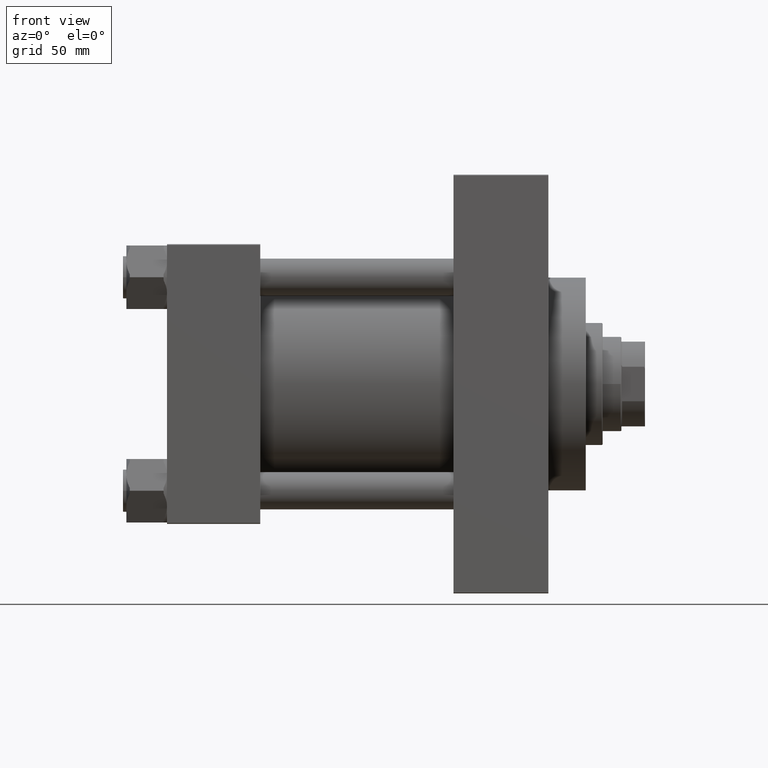
[diagram: clean part render]
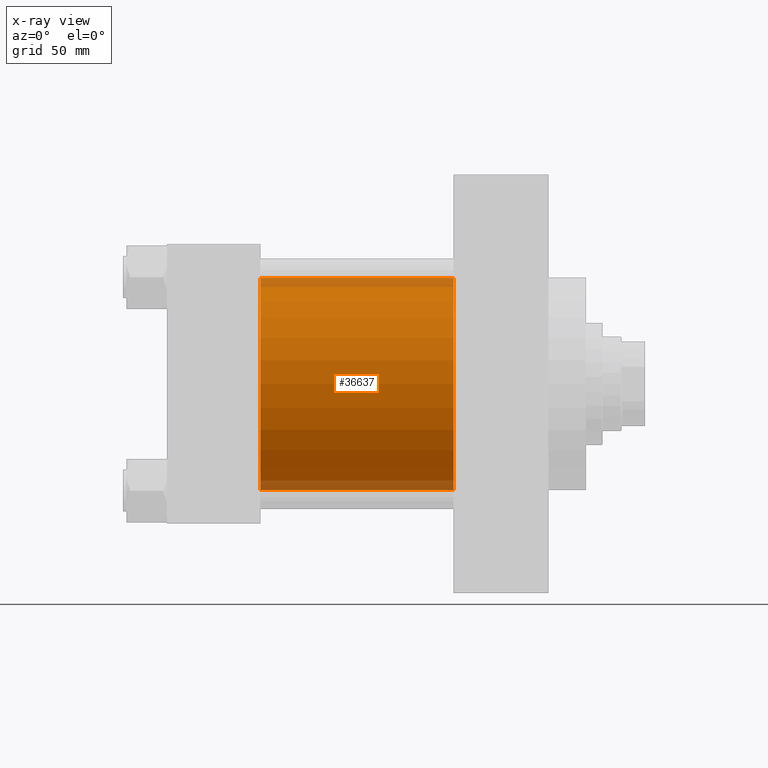
[diagram: x-ray — body ghosted, one internal face saturated and labeled with its STEP entity id]
A machine part, front view, then the same camera in x-ray: the body is ghosted and one INTERNAL B-rep face — a face not visible from any outside direction — is saturated and labeled: STEP entity #36637.
In plain terms, the highlighted cylindrical surface (partial cylindrical patch) has radius 62.5 mm, axis along (-1, -0, -0).
Its self-contained STEP definition (entity closure, byte-faithful):
#88 = ORIENTED_EDGE ( 'NONE', *, *, #4953, .T. ) ;
#1239 = DIRECTION ( 'NONE',  ( -1.000000000000000000, -0.000000000000000000, -0.000000000000000000 ) ) ;
#2773 = EDGE_CURVE ( 'NONE', #28605, #30372, #4290, .T. ) ;
#4290 = CIRCLE ( 'NONE', #26670, 62.50000000000000000 ) ;
#4953 = EDGE_CURVE ( 'NONE', #40421, #30372, #28516, .T. ) ;
#6633 = EDGE_LOOP ( 'NONE', ( #7352, #88, #44991, #23911 ) ) ;
#7352 = ORIENTED_EDGE ( 'NONE', *, *, #23643, .T. ) ;
#10437 = CYLINDRICAL_SURFACE ( 'NONE', #47037, 62.50000000000000000 ) ;
#18590 = DIRECTION ( 'NONE',  ( 0.000000000000000000, 0.000000000000000000, -1.000000000000000000 ) ) ;
#18953 = CARTESIAN_POINT ( 'NONE',  ( 169.0000000000000000, -2.602085213965210642E-15, 62.50000000000000000 ) ) ;
#20923 = CARTESIAN_POINT ( 'NONE',  ( 55.00000000000000000, 5.051957280705745584E-15, -62.50000000000000000 ) ) ;
#21955 = DIRECTION ( 'NONE',  ( 0.000000000000000000, 0.000000000000000000, 1.000000000000000000 ) ) ;
#23643 = EDGE_CURVE ( 'NONE', #39052, #40421, #26698, .T. ) ;
#23911 = ORIENTED_EDGE ( 'NONE', *, *, #24768, .F. ) ;
#24240 = VECTOR ( 'NONE', #1239, 1000.000000000000000 ) ;
#24550 = CARTESIAN_POINT ( 'NONE',  ( 169.0000000000000000, -2.602085213965210642E-15, 62.50000000000000000 ) ) ;
#24768 = EDGE_CURVE ( 'NONE', #39052, #28605, #32066, .T. ) ;
#25711 = CARTESIAN_POINT ( 'NONE',  ( 169.0000000000000000, -2.602085213965210642E-15, 0.000000000000000000 ) ) ;
#26670 = AXIS2_PLACEMENT_3D ( 'NONE', #34353, #38587, #18590 ) ;
#26698 = CIRCLE ( 'NONE', #45098, 62.50000000000000000 ) ;
#28516 = LINE ( 'NONE', #39790, #24240 ) ;
#28605 = VERTEX_POINT ( 'NONE', #46525 ) ;
#29475 = FACE_OUTER_BOUND ( 'NONE', #6633, .T. ) ;
#29956 = VECTOR ( 'NONE', #40303, 1000.000000000000000 ) ;
#30372 = VERTEX_POINT ( 'NONE', #20923 ) ;
#30993 = DIRECTION ( 'NONE',  ( 0.000000000000000000, 0.000000000000000000, -1.000000000000000000 ) ) ;
#32066 = LINE ( 'NONE', #24550, #29956 ) ;
#34353 = CARTESIAN_POINT ( 'NONE',  ( 55.00000000000000000, -2.602085213965210642E-15, 0.000000000000000000 ) ) ;
#36637 = ADVANCED_FACE ( 'NONE', ( #29475 ), #10437, .F. ) ;
#36882 = CARTESIAN_POINT ( 'NONE',  ( 169.0000000000000000, 5.051957280705745584E-15, -62.50000000000000000 ) ) ;
#37970 = DIRECTION ( 'NONE',  ( -1.000000000000000000, -0.000000000000000000, -0.000000000000000000 ) ) ;
#38587 = DIRECTION ( 'NONE',  ( 1.000000000000000000, 0.000000000000000000, 0.000000000000000000 ) ) ;
#39052 = VERTEX_POINT ( 'NONE', #18953 ) ;
#39790 = CARTESIAN_POINT ( 'NONE',  ( 169.0000000000000000, 5.051957280705745584E-15, -62.50000000000000000 ) ) ;
#40303 = DIRECTION ( 'NONE',  ( -1.000000000000000000, -0.000000000000000000, -0.000000000000000000 ) ) ;
#40421 = VERTEX_POINT ( 'NONE', #36882 ) ;
#42497 = CARTESIAN_POINT ( 'NONE',  ( 169.0000000000000000, -2.602085213965210642E-15, 0.000000000000000000 ) ) ;
#44991 = ORIENTED_EDGE ( 'NONE', *, *, #2773, .F. ) ;
#45098 = AXIS2_PLACEMENT_3D ( 'NONE', #42497, #46500, #30993 ) ;
#46500 = DIRECTION ( 'NONE',  ( 1.000000000000000000, 0.000000000000000000, 0.000000000000000000 ) ) ;
#46525 = CARTESIAN_POINT ( 'NONE',  ( 55.00000000000000000, -2.602085213965210642E-15, 62.50000000000000000 ) ) ;
#47037 = AXIS2_PLACEMENT_3D ( 'NONE', #25711, #37970, #21955 ) ;